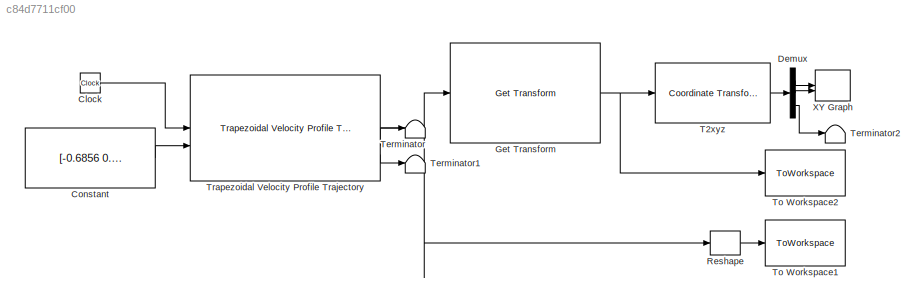
MODEL slx_c84d7711cf00
KIND model
CONFIG AbsTol = auto
CONFIG EnableMultiTasking = off
CONFIG FixedStep = auto
CONFIG MaxStep = 0.02
CONFIG MinStep = auto
CONFIG PreLoadFcn = % Load ABB robot, so it's available for forward kinematics\nabb = loadrobot("abbIrb1600", DataFormat="row");
CONFIG RelTol = 1e-3
CONFIG SampleTimeConstraint = Unconstrained
CONFIG SolverName = VariableStepDiscrete
CONFIG StartTime = 0.0
CONFIG StopTime = 2
BLOCK [Clock] Clock
BLOCK [Constant] Constant
  Value = [-0.6856 0.9498; 1.0453 1.0696; 0.1603 0.2984; -0.3843 -0.5796; 0.2956 1.3092; 2.8201 4.5907]
BLOCK [Demux] Demux
  Outputs = 3
BLOCK [Reference] Get Transform  REF=robotmaniplib/Get Transform
  SourceBlock = robotmaniplib/Get Transform
  SourceType = Get Transform
BLOCK [Reshape] Reshape
BLOCK [Reference] T2xyz  REF=robotcorelib/Coordinate Transformation Conversion
  SourceBlock = robotcorelib/Coordinate Transformation Conversion
  SourceType = robotics.slcore.internal.block.CoordinateTransformationConversion
BLOCK [Terminator] Terminator
BLOCK [Terminator] Terminator1
BLOCK [Terminator] Terminator2
BLOCK [ToWorkspace] To Workspace1
  FixptAsFi = on
  MaxDataPoints = inf
  SampleTime = -1
  Save2DSignal = 2-D array (concatenate along first dimension)
  VariableName = jointData
BLOCK [ToWorkspace] To Workspace2
  FixptAsFi = on
  MaxDataPoints = inf
  SampleTime = -1
  VariableName = poseData
BLOCK [Reference] Trapezoidal Velocity Profile Trajectory  REF=robotcorelib/Trapezoidal Velocity Profile Trajectory
  SourceBlock = robotcorelib/Trapezoidal Velocity Profile Trajectory
  SourceType = robotics.slcore.internal.block.TrapVelTrajSys
BLOCK [Record] XY Graph
  CompatibilityTag = XY
  FileSettingsInternal = {"entries":[{"content":{"excelSettings":{"content":{},"type":"Streamout.ExcelSettings"}},"type":"Streamout.FileSettingStorage","uuid":"86787838-974e-41be-9360-27d0aee75d48"}],"packageUris":["http://schema.mathworks.com/mf0/streamout_blocks/R2020a"],"version":"1.0"}
  Layout = [1 1]
  SignalsInternal = {"entries":[{"content":{"signals":[{"content":{"blockPath":["sl_jointspace_22b/XY Graph"],"channel":[],"dimensions":[1,1],"domain":"sl_jointspace_22b/XY Graph","lineColor":"#a2142f","plots":[1],"port":1,"sid":[],"signalID":584,"signalName":"Demux:1"},"type":"RecordBlkView.Signal","uuid":"8a11348d-2b9a-4abc-9d96-94ce55a1e1f6"},{"content":{"blockPath":["sl_jointspace_22b/XY Graph"],"channel":[],"dim...<+397ch>
  VisualizationBindings = {"xyplotplugin":{"info":[{"series":[{"bindingParametersList":[{"parameter":"X-Axis","signalID":584,"signalName":"Demux:1"},{"parameter":"Y-Axis","signalID":587,"signalName":"Demux:2"}],"seriesID":52801}],"subplotID":1}]}}
LINE Clock:1 -> Trapezoidal Velocity Profile Trajectory:1
LINE Constant:1 -> Trapezoidal Velocity Profile Trajectory:2
LINE Demux:1 -> XY Graph:1
LINE Demux:2 -> XY Graph:2
LINE Demux:3 -> Terminator2:1
NET Get Transform:1 -> T2xyz:1, To Workspace2:1
LINE Reshape:1 -> To Workspace1:1
LINE T2xyz:1 -> Demux:1
NET Trapezoidal Velocity Profile Trajectory:1 -> Get Transform:1, Reshape:1
LINE Trapezoidal Velocity Profile Trajectory:2 -> Terminator:1
LINE Trapezoidal Velocity Profile Trajectory:3 -> Terminator1:1
note: NET lines group one-source signal fan-out (src -> all destinations, sorted); 1:1 wires keep LINE
